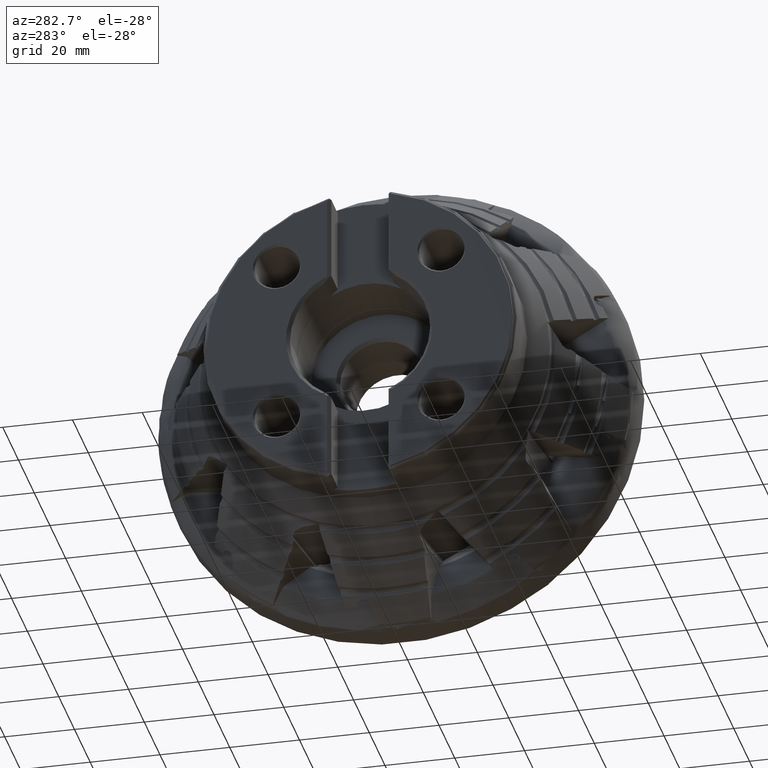
[diagram: clean part render]
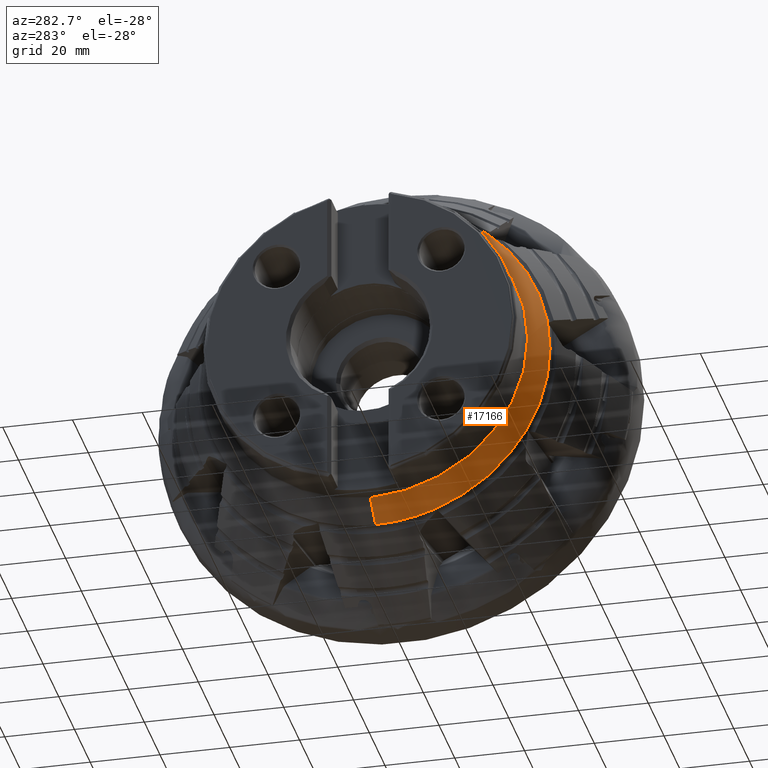
[diagram: same view with one face highlighted and labeled with its STEP entity id]
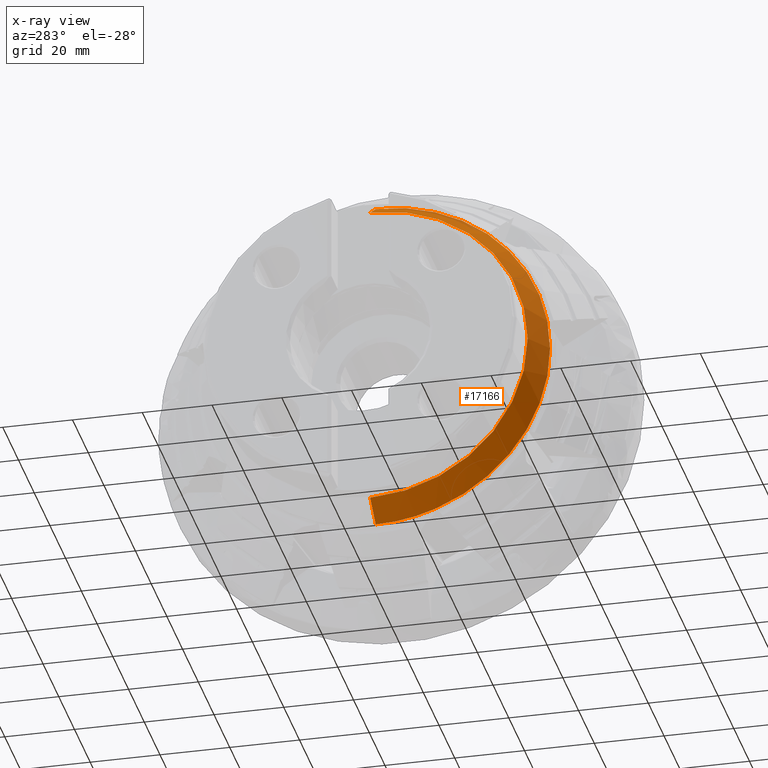
[diagram: x-ray of the same camera — body ghosted, the highlighted face saturated]
A machine part, auxiliary view. The second image highlights one B-rep face of the part: STEP entity #17166.
The next image is the same camera in x-ray: the body ghosted, the highlighted face saturated — about 2% of this face is hidden behind the body in this view.
In plain terms, the highlighted conical surface has half-angle 33.847 deg.
Its self-contained STEP definition (entity closure, byte-faithful):
#156 = B_SPLINE_CURVE_WITH_KNOTS ( 'NONE', 3,
 ( #9344, #12921, #16498, #5827 ),
 .UNSPECIFIED., .F., .F.,
 ( 4, 4 ),
 ( 4.385907607762381600E-007, 0.0002309030086000493500 ),
 .UNSPECIFIED. ) ;
#330 = CARTESIAN_POINT ( 'NONE',  ( -40.46561017216132700, -43.24473605425194500, -25.00601339528417800 ) ) ;
#1050 = CARTESIAN_POINT ( 'NONE',  ( -40.57024388863631300, -49.09800319717605500, 8.819763912311577400 ) ) ;
#1080 = CARTESIAN_POINT ( 'NONE',  ( -40.57024388863628400, -17.21155066285634700, -46.82055827517175600 ) ) ;
#1151 = DIRECTION ( 'NONE',  ( 1.000000000000000000, -0.0000000000000000000, -0.0000000000000000000 ) ) ;
#1324 = CARTESIAN_POINT ( 'NONE',  ( -40.50049090030167100, -17.25328863680642400, -46.85504867211452800 ) ) ;
#1423 = CARTESIAN_POINT ( 'NONE',  ( -40.48379446643082200, 7.037060990797413600E-015, 49.94186286229446400 ) ) ;
#1583 = CARTESIAN_POINT ( 'NONE',  ( -40.50064093141498500, -32.07105783476744400, 38.26895242900919700 ) ) ;
#1804 = B_SPLINE_CURVE_WITH_KNOTS ( 'NONE', 3,
 ( #330, #10952, #2115, #14534 ),
 .UNSPECIFIED., .F., .F.,
 ( 4, 4 ),
 ( 4.385907705519436100E-007, 0.0002309030135848508000 ),
 .UNSPECIFIED. ) ;
#1844 = EDGE_CURVE ( 'NONE', #3747, #16354, #4636, .T. ) ;
#1915 = VERTEX_POINT ( 'NONE', #9760 ) ;
#2069 = EDGE_CURVE ( 'NONE', #1915, #16010, #12135, .T. ) ;
#2115 = CARTESIAN_POINT ( 'NONE',  ( -40.53551934542773000, -43.26855890481160600, -24.87090729601372300 ) ) ;
#2153 = CARTESIAN_POINT ( 'NONE',  ( -40.46561017216132000, -0.03347482056384040700, 49.95404670057710200 ) ) ;
#2224 = VECTOR ( 'NONE', #7068, 1000.000000000000200 ) ;
#2401 = AXIS2_PLACEMENT_3D ( 'NONE', #15882, #5217, #17683 ) ;
#2613 = CARTESIAN_POINT ( 'NONE',  ( -40.46561017216131300, 0.0000000000000000000, 0.0000000000000000000 ) ) ;
#2880 = CARTESIAN_POINT ( 'NONE',  ( -40.53536881053993600, -31.94651867454950500, 38.34261663128852100 ) ) ;
#2952 = EDGE_CURVE ( 'NONE', #9631, #16010, #156, .T. ) ;
#3112 = AXIS2_PLACEMENT_3D ( 'NONE', #11800, #1151, #13563 ) ;
#3172 = EDGE_CURVE ( 'NONE', #16147, #15451, #11124, .T. ) ;
#3219 = CARTESIAN_POINT ( 'NONE',  ( -40.46561017216131300, -49.15981920071855200, 8.872433627799521700 ) ) ;
#3315 = B_SPLINE_CURVE_WITH_KNOTS ( 'NONE', 3,
 ( #18910, #1583, #5106, #17576 ),
 .UNSPECIFIED., .F., .F.,
 ( 4, 4 ),
 ( 4.385907671295447300E-007, 0.0002309030118399543900 ),
 .UNSPECIFIED. ) ;
#3386 = CARTESIAN_POINT ( 'NONE',  ( -40.46561017216131300, 0.0000000000000000000, 0.0000000000000000000 ) ) ;
#3387 = DIRECTION ( 'NONE',  ( 1.000000000000000000, -0.0000000000000000000, -0.0000000000000000000 ) ) ;
#3701 = CARTESIAN_POINT ( 'NONE',  ( -40.46561017216131300, 0.0000000000000000000, -49.95405791652009200 ) ) ;
#3744 = CARTESIAN_POINT ( 'NONE',  ( -47.59999999999998700, 5.531665249932409100E-015, 45.16947460919972500 ) ) ;
#3747 = VERTEX_POINT ( 'NONE', #21227 ) ;
#4012 = CARTESIAN_POINT ( 'NONE',  ( -40.46561017216130600, -43.36169672715978900, -24.80264419913458300 ) ) ;
#4018 = ORIENTED_EDGE ( 'NONE', *, *, #21971, .T. ) ;
#4047 = AXIS2_PLACEMENT_3D ( 'NONE', #14034, #3387, #15814 ) ;
#4075 = EDGE_CURVE ( 'NONE', #19323, #15451, #3315, .T. ) ;
#4124 = CIRCLE ( 'NONE', #12922, 49.95405791652009200 ) ;
#4370 = DIRECTION ( 'NONE',  ( 0.0000000000000000000, 0.0000000000000000000, -1.000000000000000000 ) ) ;
#4636 = CIRCLE ( 'NONE', #16978, 49.95405791652009200 ) ;
#4643 = CARTESIAN_POINT ( 'NONE',  ( -40.57024388863631300, -31.94201755424010300, 38.31591925014250000 ) ) ;
#4765 = CARTESIAN_POINT ( 'NONE',  ( -40.46561017216131300, 0.0000000000000000000, 0.0000000000000000000 ) ) ;
#4812 = B_SPLINE_CURVE_WITH_KNOTS ( 'NONE', 3,
 ( #13730, #1324, #19128, #8454 ),
 .UNSPECIFIED., .F., .F.,
 ( 4, 4 ),
 ( 2.531520300546632900E-007, 0.0001327050934897909900 ),
 .UNSPECIFIED. ) ;
#5106 = CARTESIAN_POINT ( 'NONE',  ( -40.53551934543653300, -32.00656873364048500, 38.29242454225399700 ) ) ;
#5217 = DIRECTION ( 'NONE',  ( 1.000000000000000000, -0.0000000000000000000, -0.0000000000000000000 ) ) ;
#5474 = CARTESIAN_POINT ( 'NONE',  ( -40.57024388863631300, -31.94201755424010300, 38.31591925014250000 ) ) ;
#5561 = EDGE_CURVE ( 'NONE', #9750, #10876, #10720, .T. ) ;
#5773 = CARTESIAN_POINT ( 'NONE',  ( -40.53536881053993600, -43.30756087990577900, -24.80305376744076900 ) ) ;
#5827 = CARTESIAN_POINT ( 'NONE',  ( -40.57024388863631300, -49.09800319717605500, 8.819763912311577400 ) ) ;
#6277 = CARTESIAN_POINT ( 'NONE',  ( -40.57024388863628400, -17.21155066285634700, -46.82055827517175600 ) ) ;
#6328 = ORIENTED_EDGE ( 'NONE', *, *, #5561, .T. ) ;
#6337 = ORIENTED_EDGE ( 'NONE', *, *, #8139, .T. ) ;
#6566 = DIRECTION ( 'NONE',  ( 0.0000000000000000000, 0.0000000000000000000, -1.000000000000000000 ) ) ;
#6775 = CARTESIAN_POINT ( 'NONE',  ( -40.53536881053993600, -49.11861200118862300, 8.837322028419729100 ) ) ;
#6912 = LINE ( 'NONE', #14236, #2224 ) ;
#7055 = ORIENTED_EDGE ( 'NONE', *, *, #10883, .T. ) ;
#7068 = DIRECTION ( 'NONE',  ( 0.8305253908002692100, 6.821047139638813400E-017, 0.5569807673843505400 ) ) ;
#7304 = CARTESIAN_POINT ( 'NONE',  ( -40.46561017216130600, -17.27415444338360100, -46.87228915460791300 ) ) ;
#7332 = VERTEX_POINT ( 'NONE', #2153 ) ;
#8139 = EDGE_CURVE ( 'NONE', #3747, #11789, #1804, .T. ) ;
#8405 = FACE_OUTER_BOUND ( 'NONE', #9462, .T. ) ;
#8454 = CARTESIAN_POINT ( 'NONE',  ( -40.57024388863628400, -17.21155066285634700, -46.82055827517175600 ) ) ;
#8472 = CARTESIAN_POINT ( 'NONE',  ( -40.46561017216132000, -0.03347482056384040700, 49.95404670057710200 ) ) ;
#8555 = ORIENTED_EDGE ( 'NONE', *, *, #16303, .F. ) ;
#8750 = DIRECTION ( 'NONE',  ( 1.000000000000000000, -0.0000000000000000000, -0.0000000000000000000 ) ) ;
#9005 = DIRECTION ( 'NONE',  ( 1.000000000000000000, -0.0000000000000000000, -0.0000000000000000000 ) ) ;
#9292 = CARTESIAN_POINT ( 'NONE',  ( -40.46561017216130600, -43.36169672715978900, -24.80264419913458300 ) ) ;
#9344 = CARTESIAN_POINT ( 'NONE',  ( -40.46561017216133400, -49.20094532665091000, 8.641462913821797500 ) ) ;
#9397 = EDGE_CURVE ( 'NONE', #19323, #1915, #4124, .T. ) ;
#9462 = EDGE_LOOP ( 'NONE', ( #8555, #7055, #19166, #20497, #6328, #15457, #13933, #6337, #13401, #17013, #10697, #18151, #16430, #9942, #17931, #21891, #4018 ) ) ;
#9631 = VERTEX_POINT ( 'NONE', #14647 ) ;
#9750 = VERTEX_POINT ( 'NONE', #20369 ) ;
#9760 = CARTESIAN_POINT ( 'NONE',  ( -40.46561017216131300, -49.15981920071855200, 8.872433627799521700 ) ) ;
#9942 = ORIENTED_EDGE ( 'NONE', *, *, #4075, .T. ) ;
#9956 = CARTESIAN_POINT ( 'NONE',  ( -40.46561017216131300, -31.95551591972829900, 38.39600115417015000 ) ) ;
#9959 = CIRCLE ( 'NONE', #2401, 49.95405791652009200 ) ;
#10075 = VERTEX_POINT ( 'NONE', #10591 ) ;
#10591 = CARTESIAN_POINT ( 'NONE',  ( -47.59999999999998700, 0.0000000000000000000, -45.16947460919972500 ) ) ;
#10598 = EDGE_CURVE ( 'NONE', #9631, #10698, #13831, .T. ) ;
#10697 = ORIENTED_EDGE ( 'NONE', *, *, #2952, .T. ) ;
#10698 = VERTEX_POINT ( 'NONE', #4012 ) ;
#10720 = B_SPLINE_CURVE_WITH_KNOTS ( 'NONE', 3,
 ( #16941, #16866, #15075, #6277 ),
 .UNSPECIFIED., .F., .F.,
 ( 4, 4 ),
 ( 0.01576676165424656400, 0.01599745947607069500 ),
 .UNSPECIFIED. ) ;
#10876 = VERTEX_POINT ( 'NONE', #1080 ) ;
#10883 = EDGE_CURVE ( 'NONE', #13601, #10075, #14661, .T. ) ;
#10952 = CARTESIAN_POINT ( 'NONE',  ( -40.50064093140613900, -43.25664180059863600, -24.93849255247920700 ) ) ;
#11124 = B_SPLINE_CURVE_WITH_KNOTS ( 'NONE', 3,
 ( #9956, #22437, #2880, #4643 ),
 .UNSPECIFIED., .F., .F.,
 ( 4, 4 ),
 ( 2.531521420776138400E-007, 0.0001327051436065509400 ),
 .UNSPECIFIED. ) ;
#11486 = CARTESIAN_POINT ( 'NONE',  ( -40.46561017216131300, 0.0000000000000000000, -49.95405791652009200 ) ) ;
#11789 = VERTEX_POINT ( 'NONE', #18515 ) ;
#11800 = CARTESIAN_POINT ( 'NONE',  ( -47.59999999999998700, 0.0000000000000000000, 0.0000000000000000000 ) ) ;
#12067 = CARTESIAN_POINT ( 'NONE',  ( -40.47773760839841400, -0.01116011862874129700, 49.94592481328620400 ) ) ;
#12135 = B_SPLINE_CURVE_WITH_KNOTS ( 'NONE', 3,
 ( #3219, #13863, #6775, #19257 ),
 .UNSPECIFIED., .F., .F.,
 ( 4, 4 ),
 ( 2.531519320236745500E-007, 0.0001327050466992238000 ),
 .UNSPECIFIED. ) ;
#12250 = DIRECTION ( 'NONE',  ( 0.0000000000000000000, 0.0000000000000000000, -1.000000000000000000 ) ) ;
#12601 = CONICAL_SURFACE ( 'NONE', #18270, 49.95405791652009200, 0.5907460211846045100 ) ;
#12921 = CARTESIAN_POINT ( 'NONE',  ( -40.50064093143142700, -49.16666409630560300, 8.700839746525838700 ) ) ;
#12922 = AXIS2_PLACEMENT_3D ( 'NONE', #4765, #17245, #6566 ) ;
#13129 = VERTEX_POINT ( 'NONE', #18094 ) ;
#13182 = EDGE_CURVE ( 'NONE', #10698, #11789, #17035, .T. ) ;
#13356 = VECTOR ( 'NONE', #19671, 1000.000000000000200 ) ;
#13401 = ORIENTED_EDGE ( 'NONE', *, *, #13182, .F. ) ;
#13563 = DIRECTION ( 'NONE',  ( 0.0000000000000000000, 0.0000000000000000000, -1.000000000000000000 ) ) ;
#13601 = VERTEX_POINT ( 'NONE', #3744 ) ;
#13730 = CARTESIAN_POINT ( 'NONE',  ( -40.46561017216130600, -17.27415444338360100, -46.87228915460791300 ) ) ;
#13831 = CIRCLE ( 'NONE', #17117, 49.95405791652009200 ) ;
#13863 = CARTESIAN_POINT ( 'NONE',  ( -40.50049090030168500, -49.13921733060571000, 8.854878598076531700 ) ) ;
#13909 = LINE ( 'NONE', #3701, #13356 ) ;
#13933 = ORIENTED_EDGE ( 'NONE', *, *, #1844, .F. ) ;
#14034 = CARTESIAN_POINT ( 'NONE',  ( -40.46561017216131300, 0.0000000000000000000, 0.0000000000000000000 ) ) ;
#14057 = EDGE_CURVE ( 'NONE', #9750, #22683, #18153, .T. ) ;
#14236 = CARTESIAN_POINT ( 'NONE',  ( -40.46561017216131300, 6.117607713188782500E-015, 49.95405791652009200 ) ) ;
#14534 = CARTESIAN_POINT ( 'NONE',  ( -40.57024388863632000, -43.28048748062887100, -24.80325698084732300 ) ) ;
#14647 = CARTESIAN_POINT ( 'NONE',  ( -40.46561017216133400, -49.20094532665091000, 8.641462913821797500 ) ) ;
#14661 = CIRCLE ( 'NONE', #3112, 45.16947460919972500 ) ;
#15050 = DIRECTION ( 'NONE',  ( 1.000000000000000000, -0.0000000000000000000, -0.0000000000000000000 ) ) ;
#15075 = CARTESIAN_POINT ( 'NONE',  ( -40.53551098582827400, -17.15891539087170900, -46.86472451248096900 ) ) ;
#15244 = B_SPLINE_CURVE_WITH_KNOTS ( 'NONE', 3,
 ( #8472, #19151, #12067, #1423 ),
 .UNSPECIFIED., .F., .F.,
 ( 4, 4 ),
 ( 4.385907671090684000E-007, 4.034630934985085300E-005 ),
 .UNSPECIFIED. ) ;
#15446 = EDGE_CURVE ( 'NONE', #10075, #22683, #13909, .T. ) ;
#15451 = VERTEX_POINT ( 'NONE', #5474 ) ;
#15457 = ORIENTED_EDGE ( 'NONE', *, *, #21274, .F. ) ;
#15814 = DIRECTION ( 'NONE',  ( 0.0000000000000000000, 0.0000000000000000000, -1.000000000000000000 ) ) ;
#15882 = CARTESIAN_POINT ( 'NONE',  ( -40.46561017216131300, 0.0000000000000000000, 0.0000000000000000000 ) ) ;
#16010 = VERTEX_POINT ( 'NONE', #1050 ) ;
#16147 = VERTEX_POINT ( 'NONE', #20988 ) ;
#16303 = EDGE_CURVE ( 'NONE', #13601, #13129, #6912, .T. ) ;
#16354 = VERTEX_POINT ( 'NONE', #7304 ) ;
#16430 = ORIENTED_EDGE ( 'NONE', *, *, #9397, .F. ) ;
#16498 = CARTESIAN_POINT ( 'NONE',  ( -40.53551934545287600, -49.13235016231238500, 8.760273223609658500 ) ) ;
#16533 = CARTESIAN_POINT ( 'NONE',  ( -40.46561017216134100, -32.13548547311110300, 38.24550268638803600 ) ) ;
#16866 = CARTESIAN_POINT ( 'NONE',  ( -40.50063253009031400, -17.10634346618427800, -46.90883759509647900 ) ) ;
#16941 = CARTESIAN_POINT ( 'NONE',  ( -40.46561017216132700, -17.05383417036226500, -46.95289812585411200 ) ) ;
#16978 = AXIS2_PLACEMENT_3D ( 'NONE', #2613, #15050, #4370 ) ;
#17013 = ORIENTED_EDGE ( 'NONE', *, *, #10598, .F. ) ;
#17035 = B_SPLINE_CURVE_WITH_KNOTS ( 'NONE', 3,
 ( #9292, #19975, #5773, #18240 ),
 .UNSPECIFIED., .F., .F.,
 ( 4, 4 ),
 ( 2.531521561892625200E-007, 0.0001327051487303288900 ),
 .UNSPECIFIED. ) ;
#17117 = AXIS2_PLACEMENT_3D ( 'NONE', #19692, #9005, #21498 ) ;
#17166 = ADVANCED_FACE ( 'NONE', ( #8405 ), #12601, .T. ) ;
#17245 = DIRECTION ( 'NONE',  ( 1.000000000000000000, -0.0000000000000000000, -0.0000000000000000000 ) ) ;
#17576 = CARTESIAN_POINT ( 'NONE',  ( -40.57024388863631300, -31.94201755424010300, 38.31591925014250000 ) ) ;
#17683 = DIRECTION ( 'NONE',  ( 0.0000000000000000000, 0.0000000000000000000, -1.000000000000000000 ) ) ;
#17931 = ORIENTED_EDGE ( 'NONE', *, *, #3172, .F. ) ;
#18094 = CARTESIAN_POINT ( 'NONE',  ( -40.48379446643082200, 7.037060990797413600E-015, 49.94186286229446400 ) ) ;
#18151 = ORIENTED_EDGE ( 'NONE', *, *, #2069, .F. ) ;
#18153 = CIRCLE ( 'NONE', #4047, 49.95405791652009200 ) ;
#18240 = CARTESIAN_POINT ( 'NONE',  ( -40.57024388863632000, -43.28048748062887100, -24.80325698084732300 ) ) ;
#18270 = AXIS2_PLACEMENT_3D ( 'NONE', #3386, #8750, #12250 ) ;
#18515 = CARTESIAN_POINT ( 'NONE',  ( -40.57024388863632000, -43.28048748062887100, -24.80325698084732300 ) ) ;
#18910 = CARTESIAN_POINT ( 'NONE',  ( -40.46561017216134100, -32.13548547311110300, 38.24550268638803600 ) ) ;
#19128 = CARTESIAN_POINT ( 'NONE',  ( -40.53536881053991400, -17.23242071298861000, -46.83780505027819900 ) ) ;
#19151 = CARTESIAN_POINT ( 'NONE',  ( -40.47167617434732300, -0.02231839108980576300, 49.94998609232786900 ) ) ;
#19166 = ORIENTED_EDGE ( 'NONE', *, *, #15446, .T. ) ;
#19257 = CARTESIAN_POINT ( 'NONE',  ( -40.57024388863631300, -49.09800319717605500, 8.819763912311577400 ) ) ;
#19323 = VERTEX_POINT ( 'NONE', #16533 ) ;
#19671 = DIRECTION ( 'NONE',  ( 0.8305253908002692100, 0.0000000000000000000, -0.5569807673843505400 ) ) ;
#19692 = CARTESIAN_POINT ( 'NONE',  ( -40.46561017216131300, 0.0000000000000000000, 0.0000000000000000000 ) ) ;
#19975 = CARTESIAN_POINT ( 'NONE',  ( -40.50049090030167800, -43.33463062344836900, -24.80284950525775800 ) ) ;
#20369 = CARTESIAN_POINT ( 'NONE',  ( -40.46561017216132700, -17.05383417036226500, -46.95289812585411200 ) ) ;
#20497 = ORIENTED_EDGE ( 'NONE', *, *, #14057, .F. ) ;
#20988 = CARTESIAN_POINT ( 'NONE',  ( -40.46561017216131300, -31.95551591972829900, 38.39600115417015000 ) ) ;
#21227 = CARTESIAN_POINT ( 'NONE',  ( -40.46561017216132700, -43.24473605425194500, -25.00601339528417800 ) ) ;
#21274 = EDGE_CURVE ( 'NONE', #16354, #10876, #4812, .T. ) ;
#21498 = DIRECTION ( 'NONE',  ( 0.0000000000000000000, 0.0000000000000000000, -1.000000000000000000 ) ) ;
#21730 = EDGE_CURVE ( 'NONE', #7332, #16147, #9959, .T. ) ;
#21891 = ORIENTED_EDGE ( 'NONE', *, *, #21730, .F. ) ;
#21971 = EDGE_CURVE ( 'NONE', #7332, #13129, #15244, .T. ) ;
#22437 = CARTESIAN_POINT ( 'NONE',  ( -40.50049090030168500, -31.95101812720410500, 38.36931059435716000 ) ) ;
#22683 = VERTEX_POINT ( 'NONE', #11486 ) ;